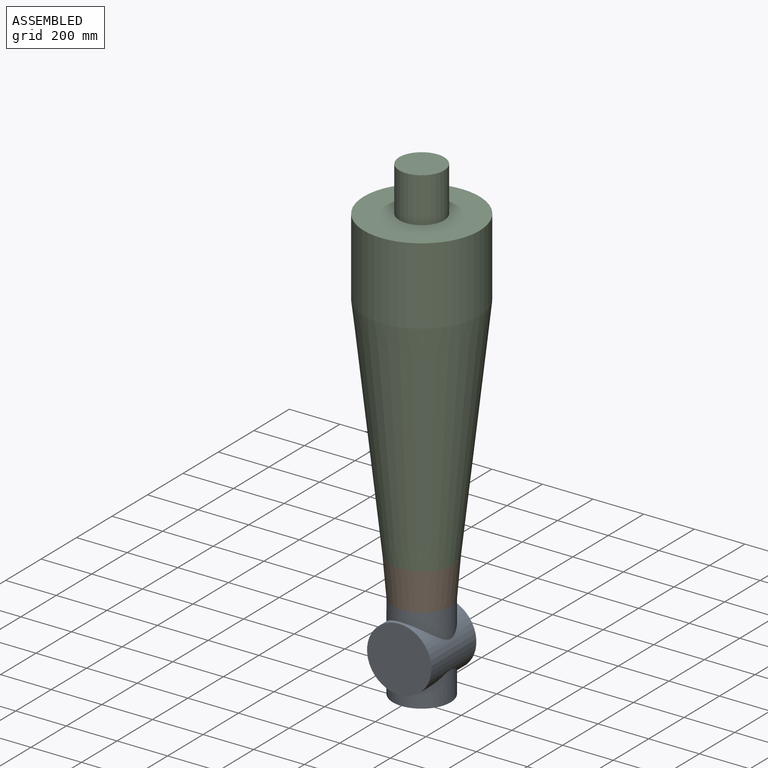
[diagram: assembled view]
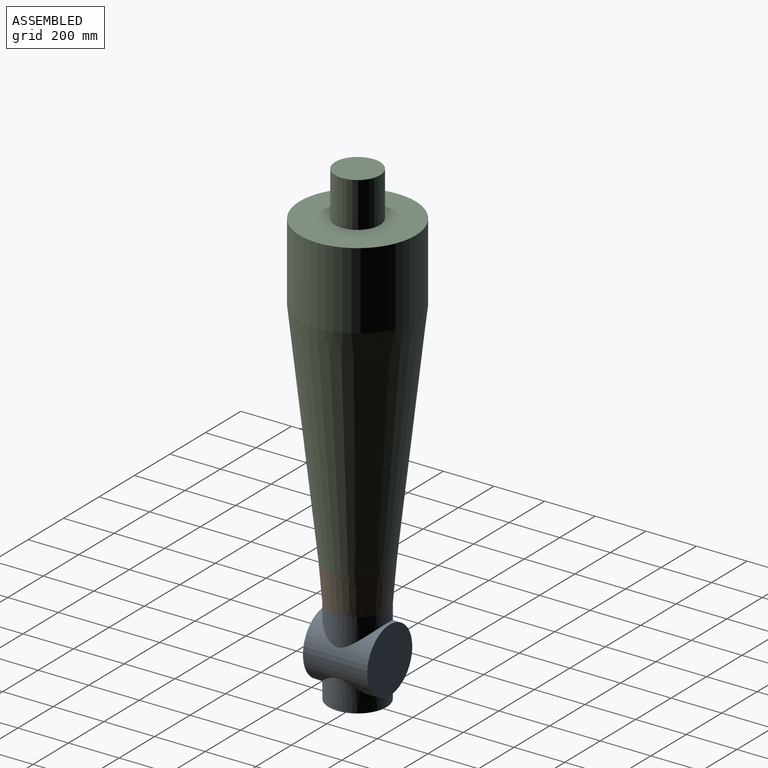
[diagram: assembled view, second angle]
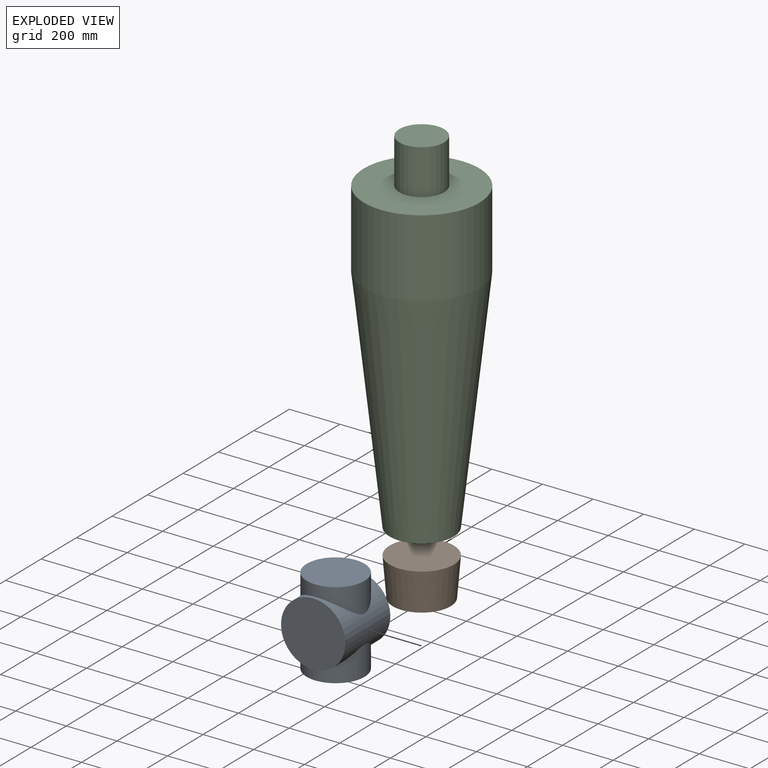
[diagram: exploded view]
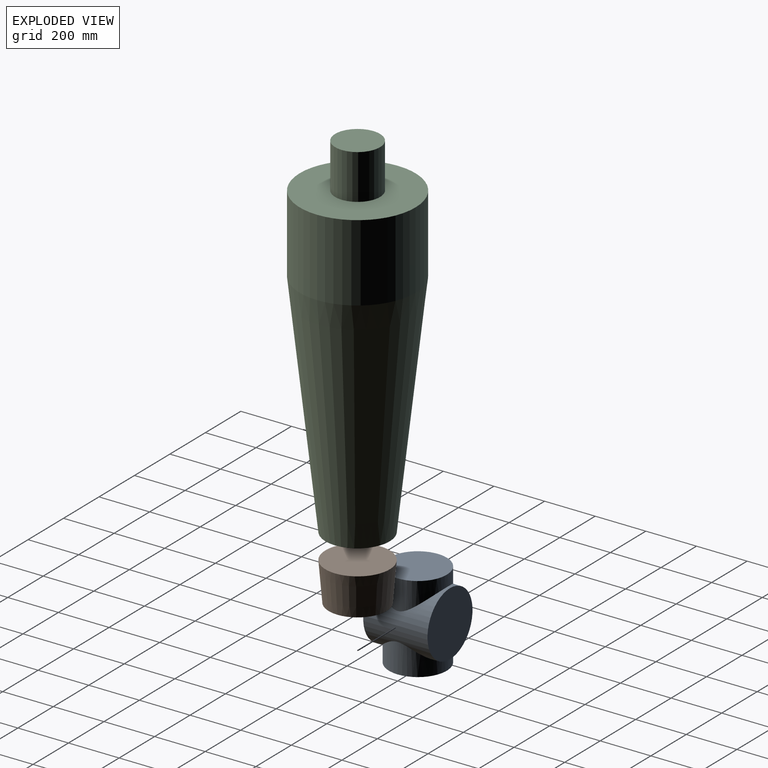
[diagram: exploded view, second angle]
ASSEMBLY  parts=3 mates=2
PART A: 7 faces, bbox 254x254x342.9 mm
  f0: cylinder r=127mm len=254mm, axis (0,1,0), area 107534.5mm2, adj f1,f2,f4,f5
  f1: plane 254x254mm, normal (0,-1,0), area 50670.7mm2, adj f0
  f2: plane 254x254mm, normal (0,1,0), area 50670.7mm2, adj f0
  f3: plane 228.6x228.6mm, normal (0,0,-1), area 41043.3mm2, adj f4
  f4: cylinder r=114.3mm len=228.6mm, axis (0,0,-1), area 55091.9mm2, adj f0,f3
  f5: cylinder r=114.3mm len=228.6mm, axis (0,0,-1), area 55075mm2, adj f0,f6
  f6: plane 228.6x228.6mm, normal (0,0,1), area 41043.3mm2, adj f5
PART B: 3 faces, bbox 254x254x152.4 mm
  f0: plane 228.6x228.6mm, normal (0,0,-1), area 41043.3mm2, adj f2
  f1: plane 254x254mm, normal (0,0,1), area 50670.7mm2, adj f2
  f2: cone r=114.3mm half-angle=4.8deg, axis (0,0,1), area 115929.8mm2, adj f0,f1
PART C: 6 faces, bbox 457.2x457.2x1397 mm
  f0: plane 254x254mm, normal (0,0,-1), area 50670.7mm2, adj f1
  f1: cone r=127mm half-angle=6.3deg, axis (0,0,1), area 1027808.6mm2, adj f0,f2
  f2: cylinder r=228.6mm len=457.2mm, axis (0,0,-1), area 437795.3mm2, adj f1,f3
  f3: plane 457.2x457.2mm, normal (0,0,1), area 139344.6mm2, adj f2,f4
  f4: cylinder r=88.9mm len=177.8mm, axis (0,0,-1), area 99314.7mm2, adj f3,f5
  f5: plane 177.8x177.8mm, normal (0,0,1), area 24828.7mm2, adj f4
PLACE A t=(-162.24,-191.64,-845.46)mm fixed
PLACE B t=(-162.24,-191.64,-674.01)mm
PLACE C t=(-162.24,-191.64,-521.61)mm
MATE planar C.f1 <-> B.f2  axis (0,0,-1) through (-162.24,-191.64,-521.61)mm
MATE cylindrical B.f2 <-> C.f1  axis (0,0,1) through (-162.24,-191.64,-521.61)mm
